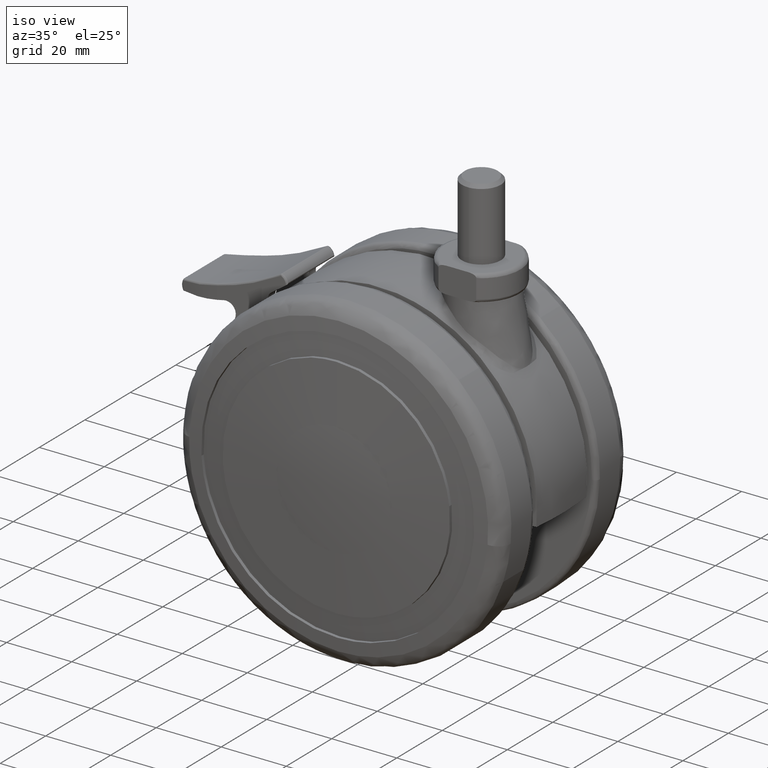
[diagram: clean part render]
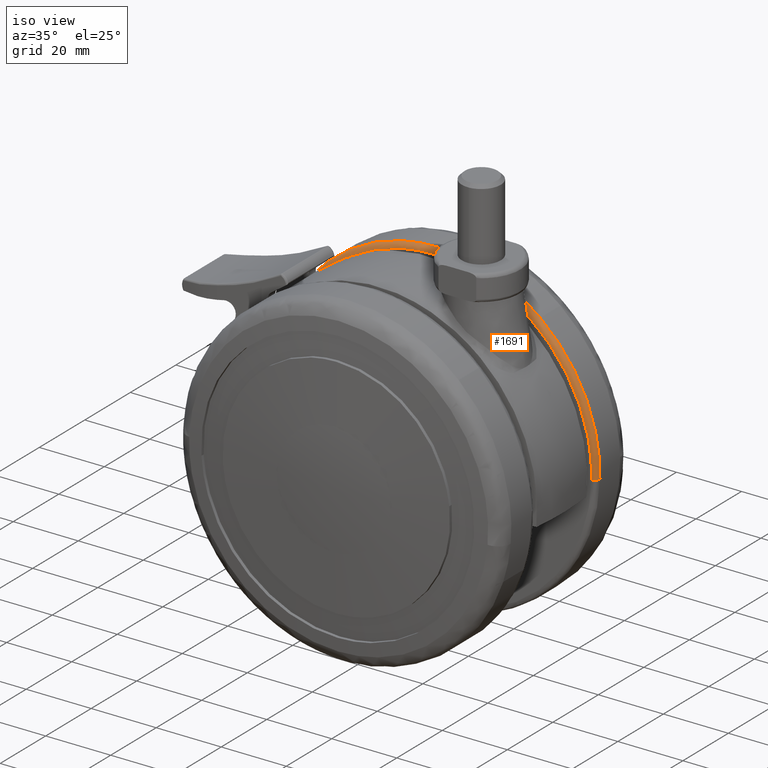
[diagram: same view with one face highlighted and labeled with its STEP entity id]
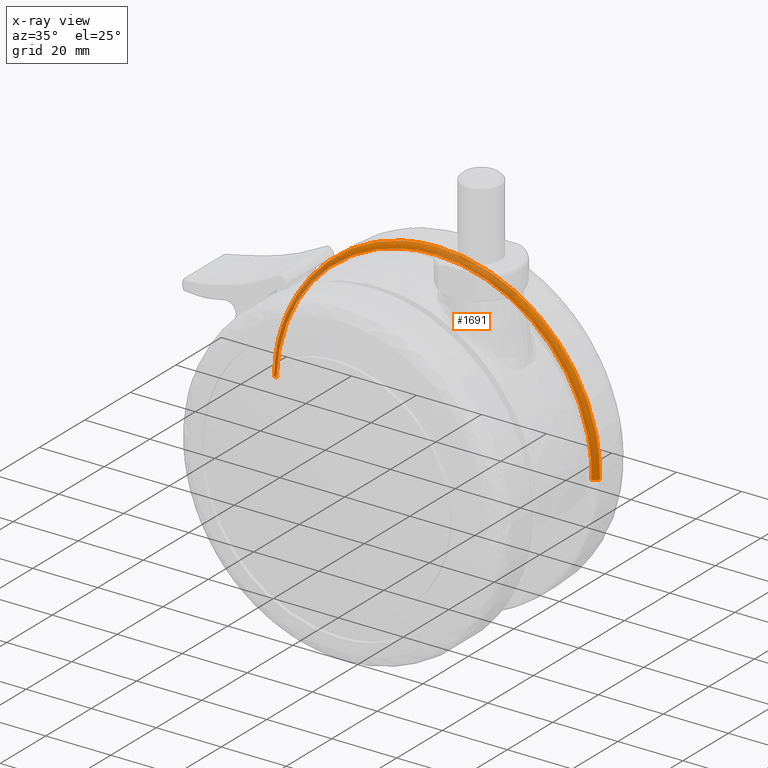
[diagram: x-ray of the same camera — body ghosted, the highlighted face saturated]
A machine part, iso view. The second image highlights one B-rep face of the part: STEP entity #1691.
The next image is the same camera in x-ray: the body ghosted, the highlighted face saturated — about 32% of this face is hidden behind the body in this view.
In plain terms, the highlighted face is a freeform B-spline surface patch.
Its self-contained STEP definition (entity closure, byte-faithful):
#884=CARTESIAN_POINT('',(-49.984209464156407,14.999999993750169,1.256504772508648));
#885=VERTEX_POINT('',#884);
#901=CARTESIAN_POINT('',(0.0,15.0,50.0));
#902=VERTEX_POINT('',#901);
#903=CARTESIAN_POINT('',(-49.984209464156415,14.999999993750173,1.256504772508648));
#904=CARTESIAN_POINT('',(-48.758893808365457,15.000000000000005,49.999999999999993));
#905=CARTESIAN_POINT('',(0.0,15.0,50.0));
#913=(BOUNDED_CURVE()B_SPLINE_CURVE(2,(#903,#904,#905),.UNSPECIFIED.,.F.,.U.)B_SPLINE_CURVE_WITH_KNOTS((3,3),(0.754420108232585,1.0),.UNSPECIFIED.)CURVE()GEOMETRIC_REPRESENTATION_ITEM()RATIONAL_B_SPLINE_CURVE((0.989826157676168,0.712285260097530,1.0))REPRESENTATION_ITEM(''));
#914=EDGE_CURVE('',#885,#902,#913,.T.);
#916=CARTESIAN_POINT('',(31.615886728408181,15.0,38.735457998795383));
#917=VERTEX_POINT('',#916);
#918=CARTESIAN_POINT('',(0.0,15.0,50.0));
#919=CARTESIAN_POINT('',(17.814686170232793,15.000000000000002,49.999999999999986));
#920=CARTESIAN_POINT('',(31.615886728408181,14.999999999999998,38.735457998795383));
#928=(BOUNDED_CURVE()B_SPLINE_CURVE(2,(#918,#919,#920),.UNSPECIFIED.,.F.,.U.)B_SPLINE_CURVE_WITH_KNOTS((3,3),(0.0,0.109768964413235),.UNSPECIFIED.)CURVE()GEOMETRIC_REPRESENTATION_ITEM()RATIONAL_B_SPLINE_CURVE((1.0,0.871397658748753,0.855727684059641))REPRESENTATION_ITEM(''));
#929=EDGE_CURVE('',#902,#917,#928,.T.);
#973=CARTESIAN_POINT('',(49.984209464156407,14.999999993750169,-1.256504772508647));
#974=VERTEX_POINT('',#973);
#975=CARTESIAN_POINT('',(31.615886728408181,14.999999999999998,38.735457998795383));
#976=CARTESIAN_POINT('',(50.000000000000014,15.000000000000009,23.730341941695020));
#977=CARTESIAN_POINT('',(50.0,15.0,0.0));
#978=CARTESIAN_POINT('',(50.0,15.000000000000005,-0.628351606510912));
#979=CARTESIAN_POINT('',(49.984209464156415,14.999999993750173,-1.256504772508647));
#987=(BOUNDED_CURVE()B_SPLINE_CURVE(2,(#975,#976,#977,#978,#979),.UNSPECIFIED.,.F.,.U.)B_SPLINE_CURVE_WITH_KNOTS((3,2,3),(0.109768964413235,0.250000000000000,0.254420108232585),.UNSPECIFIED.)CURVE()GEOMETRIC_REPRESENTATION_ITEM()RATIONAL_B_SPLINE_CURVE((0.855727684059641,0.835709122437794,1.0,0.994821521089017,0.989826157676168))REPRESENTATION_ITEM(''));
#988=EDGE_CURVE('',#917,#974,#987,.T.);
#1568=CARTESIAN_POINT('',(48.484683325863180,13.500000000000011,-1.218809635096471));
#1569=VERTEX_POINT('',#1568);
#1570=CARTESIAN_POINT('',(49.984209464156400,14.999999993750167,-1.256504772508647));
#1571=CARTESIAN_POINT('',(49.984209451669280,13.500000291460580,-1.256504771852752));
#1572=CARTESIAN_POINT('',(48.484683325863180,13.500000000000016,-1.218809635096471));
#1580=(BOUNDED_CURVE()B_SPLINE_CURVE(2,(#1570,#1571,#1572),.UNSPECIFIED.,.F.,.U.)B_SPLINE_CURVE_WITH_KNOTS((3,3),(-1.723441273405082,-0.263587080028462),.UNSPECIFIED.)CURVE()GEOMETRIC_REPRESENTATION_ITEM()RATIONAL_B_SPLINE_CURVE((0.883897564114801,0.626638764214989,0.888510336914871))REPRESENTATION_ITEM(''));
#1581=EDGE_CURVE('',#974,#1569,#1580,.T.);
#1598=CARTESIAN_POINT('',(-48.484683325863180,13.500000000000011,1.218809635096481));
#1599=VERTEX_POINT('',#1598);
#1615=CARTESIAN_POINT('',(-49.984209464156407,14.999999993750173,1.256504772508648));
#1616=CARTESIAN_POINT('',(-49.984209451669258,13.500000291460587,1.256504771852757));
#1617=CARTESIAN_POINT('',(-48.484683325863173,13.500000000000020,1.218809635096481));
#1625=(BOUNDED_CURVE()B_SPLINE_CURVE(2,(#1615,#1616,#1617),.UNSPECIFIED.,.F.,.U.)B_SPLINE_CURVE_WITH_KNOTS((3,3),(-1.723441273405083,-0.263587080028463),.UNSPECIFIED.)CURVE()GEOMETRIC_REPRESENTATION_ITEM()RATIONAL_B_SPLINE_CURVE((0.883897564114801,0.626638764214989,0.888510336914871))REPRESENTATION_ITEM(''));
#1626=EDGE_CURVE('',#885,#1599,#1625,.T.);
#1631=CARTESIAN_POINT('',(49.980560076120419,15.104586310406608,-1.256413033725017));
#1632=CARTESIAN_POINT('',(51.236973109845437,15.104586310406610,48.724147042395401));
#1633=CARTESIAN_POINT('',(1.256413033725020,15.104586310406608,49.980560076120419));
#1634=CARTESIAN_POINT('',(-48.724147042395401,15.104586310406610,51.236973109845437));
#1635=CARTESIAN_POINT('',(-49.980560076120419,15.104586310406608,1.256413033725023));
#1636=CARTESIAN_POINT('',(50.100781590263622,13.383995659792424,-1.259435166271624));
#1637=CARTESIAN_POINT('',(51.360216756535266,13.383995659792429,48.841346423992007));
#1638=CARTESIAN_POINT('',(1.259435166271627,13.383995659792424,50.100781590263622));
#1639=CARTESIAN_POINT('',(-48.841346423991979,13.383995659792429,51.360216756535266));
#1640=CARTESIAN_POINT('',(-50.100781590263622,13.383995659792424,1.259435166271630));
#1641=CARTESIAN_POINT('',(48.380689469666301,13.503611522988527,-1.216195431538065));
#1642=CARTESIAN_POINT('',(49.596884901204376,13.503611522988523,47.164494038128240));
#1643=CARTESIAN_POINT('',(1.216195431538068,13.503611522988527,48.380689469666301));
#1644=CARTESIAN_POINT('',(-47.164494038128225,13.503611522988523,49.596884901204376));
#1645=CARTESIAN_POINT('',(-48.380689469666301,13.503611522988527,1.216195431538071));
#1653=(BOUNDED_SURFACE()B_SPLINE_SURFACE(2,2,((#1631,#1636,#1641),(#1632,#1637,#1642),(#1633,#1638,#1643),(#1634,#1639,#1644),(#1635,#1640,#1645)),.UNSPECIFIED.,.F.,.F.,.U.)B_SPLINE_SURFACE_WITH_KNOTS((3,2,3),(3,3),(0.0,82.836664060375270,165.673328120750510),(0.0,2.733556377937252),.UNSPECIFIED.)GEOMETRIC_REPRESENTATION_ITEM()RATIONAL_B_SPLINE_SURFACE(((0.910892950627466,0.599412832290527,0.915966818727494),(0.644098582323704,0.423848878442866,0.647686348864080),(0.910892950627466,0.599412832290527,0.915966818727494),(0.644098582323704,0.423848878442866,0.647686348864080),(0.910892950627466,0.599412832290527,0.915966818727494)))REPRESENTATION_ITEM('')SURFACE());
#1654=ORIENTED_EDGE('',*,*,#914,.F.);
#1655=ORIENTED_EDGE('',*,*,#1626,.T.);
#1656=CARTESIAN_POINT('',(0.0,13.500000000000000,48.500000000000000));
#1657=VERTEX_POINT('',#1656);
#1658=CARTESIAN_POINT('',(-48.484683325863188,13.500000000000016,1.218809635096482));
#1659=CARTESIAN_POINT('',(-47.296126990014457,13.499999999999998,48.500000000000007));
#1660=CARTESIAN_POINT('',(0.0,13.500000000000000,48.500000000000000));
#1668=(BOUNDED_CURVE()B_SPLINE_CURVE(2,(#1658,#1659,#1660),.UNSPECIFIED.,.F.,.U.)B_SPLINE_CURVE_WITH_KNOTS((3,3),(0.754420108247749,1.0),.UNSPECIFIED.)CURVE()GEOMETRIC_REPRESENTATION_ITEM()RATIONAL_B_SPLINE_CURVE((0.989826157641893,0.712285260115296,1.0))REPRESENTATION_ITEM(''));
#1669=EDGE_CURVE('',#1599,#1657,#1668,.T.);
#1670=ORIENTED_EDGE('',*,*,#1669,.T.);
#1671=CARTESIAN_POINT('',(0.0,13.500000000000000,48.500000000000000));
#1672=CARTESIAN_POINT('',(48.500000000000014,13.500000000000000,48.500000000000014));
#1673=CARTESIAN_POINT('',(48.500000000000000,13.500000000000000,0.0));
#1674=CARTESIAN_POINT('',(48.500000000000000,13.500000000000005,-0.609501060417457));
#1675=CARTESIAN_POINT('',(48.484683325863188,13.500000000000016,-1.218809635096470));
#1683=(BOUNDED_CURVE()B_SPLINE_CURVE(2,(#1671,#1672,#1673,#1674,#1675),.UNSPECIFIED.,.F.,.U.)B_SPLINE_CURVE_WITH_KNOTS((3,2,3),(0.0,0.250000000000000,0.254420108247749),.UNSPECIFIED.)CURVE()GEOMETRIC_REPRESENTATION_ITEM()RATIONAL_B_SPLINE_CURVE((1.0,0.707106781186547,1.0,0.994821521071251,0.989826157641893))REPRESENTATION_ITEM(''));
#1684=EDGE_CURVE('',#1657,#1569,#1683,.T.);
#1685=ORIENTED_EDGE('',*,*,#1684,.T.);
#1686=ORIENTED_EDGE('',*,*,#1581,.F.);
#1687=ORIENTED_EDGE('',*,*,#988,.F.);
#1688=ORIENTED_EDGE('',*,*,#929,.F.);
#1689=EDGE_LOOP('',(#1654,#1655,#1670,#1685,#1686,#1687,#1688));
#1690=FACE_OUTER_BOUND('',#1689,.T.);
#1691=ADVANCED_FACE('',(#1690),#1653,.T.);